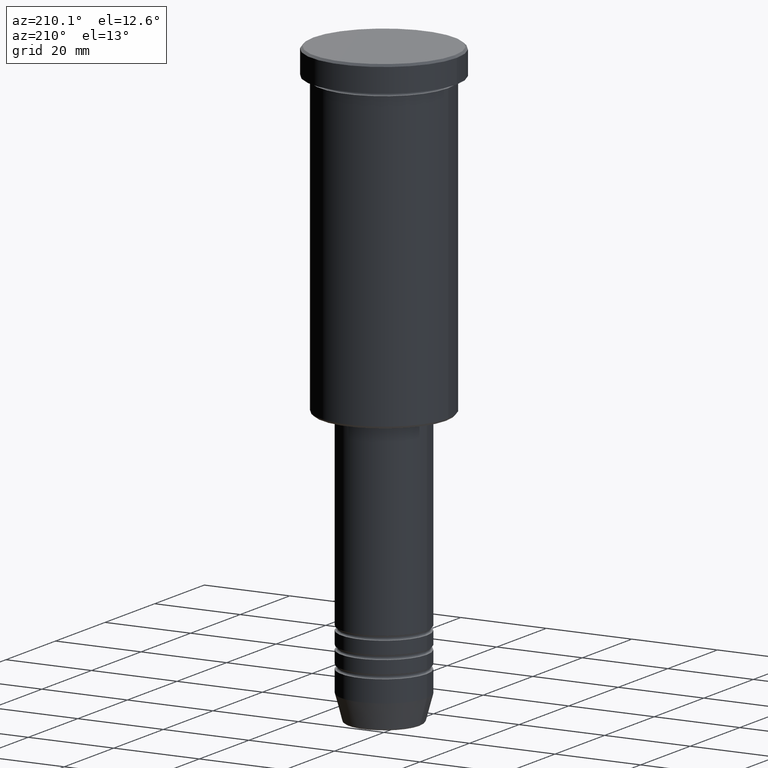
[diagram: clean part render]
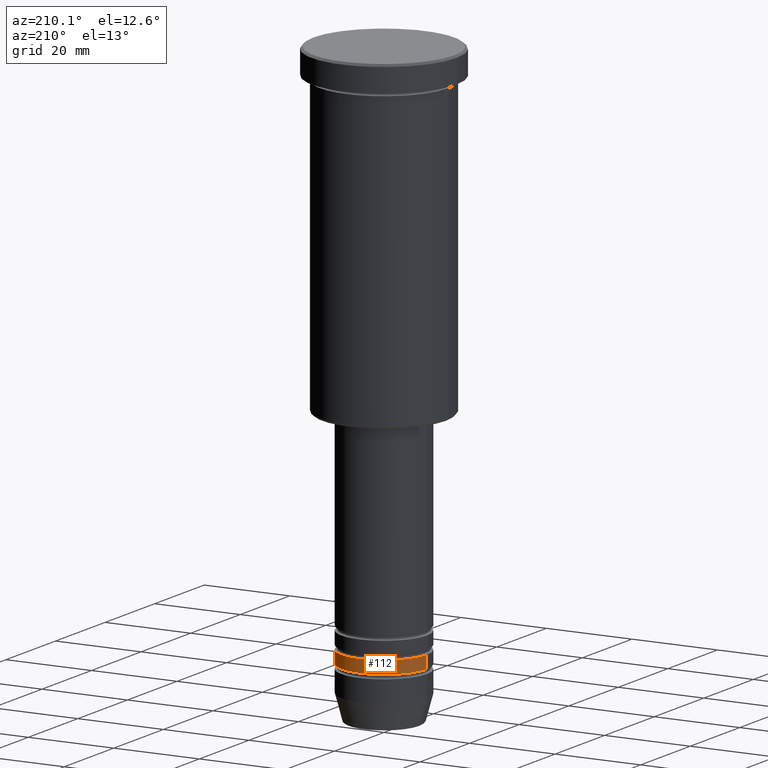
[diagram: same view with one face highlighted and labeled with its STEP entity id]
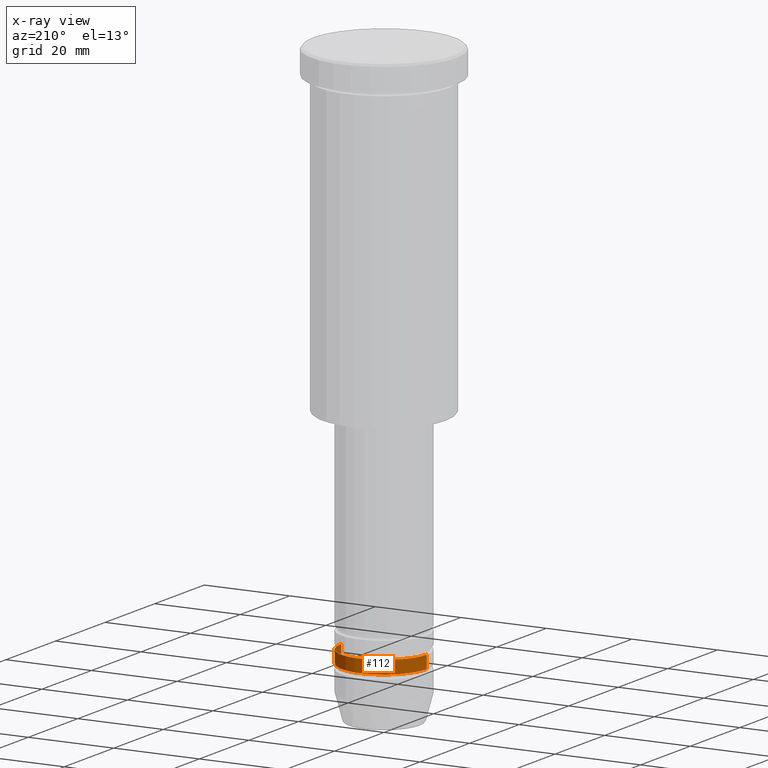
[diagram: x-ray of the same camera — body ghosted, the highlighted face saturated]
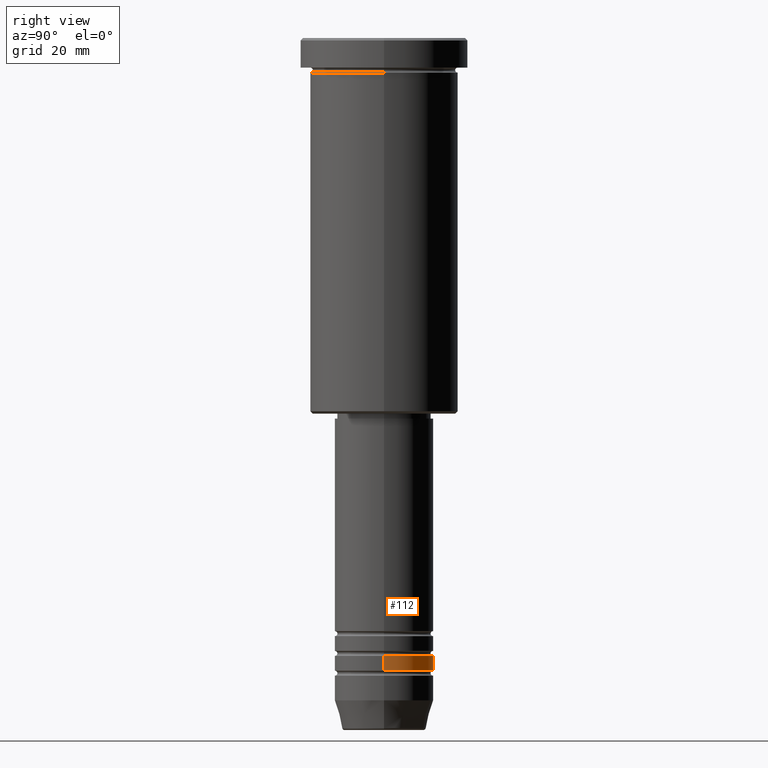
[diagram: same view with one face highlighted and labeled with its STEP entity id]
A machine part, auxiliary view. The second image highlights one B-rep face of the part: STEP entity #112.
The next image is the same camera in x-ray: the body ghosted, the highlighted face saturated — about 0% of this face is hidden behind the body in this view.
A second angle (right view) of the same face is appended — the face is thin or edge-on in the first view.
In plain terms, the highlighted cylindrical surface (partial cylindrical patch) has radius 10 mm, axis along (-0, -0, 1).
Its self-contained STEP definition (entity closure, byte-faithful):
#41 = DIRECTION ( 'NONE',  ( 1.000000000000000000, 0.000000000000000000, 0.000000000000000000 ) ) ;
#54 = VECTOR ( 'NONE', #259, 1000.000000000000000 ) ;
#57 = CIRCLE ( 'NONE', #212, 10.00000000000000000 ) ;
#105 = CARTESIAN_POINT ( 'NONE',  ( 0.000000000000000000, 0.000000000000000000, 0.000000000000000000 ) ) ;
#112 = ADVANCED_FACE ( 'NONE', ( #565 ), #926, .T. ) ;
#118 = CARTESIAN_POINT ( 'NONE',  ( 0.000000000000000000, 0.000000000000000000, -128.0000000000000000 ) ) ;
#149 = EDGE_CURVE ( 'NONE', #475, #525, #646, .T. ) ;
#190 = CARTESIAN_POINT ( 'NONE',  ( -10.00000000000000000, 1.224646799147353256E-15, -125.0000000000000000 ) ) ;
#209 = AXIS2_PLACEMENT_3D ( 'NONE', #118, #472, #769 ) ;
#212 = AXIS2_PLACEMENT_3D ( 'NONE', #361, #251, #41 ) ;
#251 = DIRECTION ( 'NONE',  ( -0.000000000000000000, -0.000000000000000000, 1.000000000000000000 ) ) ;
#256 = CARTESIAN_POINT ( 'NONE',  ( -10.00000000000000178, 1.224646799147353454E-15, -128.0000000000000000 ) ) ;
#259 = DIRECTION ( 'NONE',  ( -0.000000000000000000, -0.000000000000000000, 1.000000000000000000 ) ) ;
#294 = DIRECTION ( 'NONE',  ( -0.000000000000000000, -0.000000000000000000, 1.000000000000000000 ) ) ;
#333 = EDGE_CURVE ( 'NONE', #525, #485, #765, .T. ) ;
#335 = ORIENTED_EDGE ( 'NONE', *, *, #580, .F. ) ;
#361 = CARTESIAN_POINT ( 'NONE',  ( 0.000000000000000000, 0.000000000000000000, -125.0000000000000000 ) ) ;
#472 = DIRECTION ( 'NONE',  ( -0.000000000000000000, -0.000000000000000000, 1.000000000000000000 ) ) ;
#475 = VERTEX_POINT ( 'NONE', #943 ) ;
#485 = VERTEX_POINT ( 'NONE', #190 ) ;
#498 = CARTESIAN_POINT ( 'NONE',  ( 10.00000000000000000, 0.000000000000000000, -125.0000000000000000 ) ) ;
#525 = VERTEX_POINT ( 'NONE', #256 ) ;
#532 = LINE ( 'NONE', #900, #951 ) ;
#565 = FACE_OUTER_BOUND ( 'NONE', #889, .T. ) ;
#580 = EDGE_CURVE ( 'NONE', #475, #950, #532, .T. ) ;
#609 = DIRECTION ( 'NONE',  ( -0.000000000000000000, -0.000000000000000000, 1.000000000000000000 ) ) ;
#633 = EDGE_CURVE ( 'NONE', #950, #485, #57, .T. ) ;
#646 = CIRCLE ( 'NONE', #209, 10.00000000000000178 ) ;
#673 = DIRECTION ( 'NONE',  ( 1.000000000000000000, 0.000000000000000000, 0.000000000000000000 ) ) ;
#765 = LINE ( 'NONE', #892, #54 ) ;
#769 = DIRECTION ( 'NONE',  ( 1.000000000000000000, 0.000000000000000000, 0.000000000000000000 ) ) ;
#772 = ORIENTED_EDGE ( 'NONE', *, *, #149, .T. ) ;
#824 = ORIENTED_EDGE ( 'NONE', *, *, #633, .F. ) ;
#828 = ORIENTED_EDGE ( 'NONE', *, *, #333, .T. ) ;
#889 = EDGE_LOOP ( 'NONE', ( #772, #828, #824, #335 ) ) ;
#892 = CARTESIAN_POINT ( 'NONE',  ( -10.00000000000000178, 1.224646799147353454E-15, 0.000000000000000000 ) ) ;
#900 = CARTESIAN_POINT ( 'NONE',  ( 10.00000000000000178, 0.000000000000000000, 0.000000000000000000 ) ) ;
#926 = CYLINDRICAL_SURFACE ( 'NONE', #970, 10.00000000000000178 ) ;
#943 = CARTESIAN_POINT ( 'NONE',  ( 10.00000000000000178, 0.000000000000000000, -128.0000000000000000 ) ) ;
#950 = VERTEX_POINT ( 'NONE', #498 ) ;
#951 = VECTOR ( 'NONE', #609, 1000.000000000000000 ) ;
#970 = AXIS2_PLACEMENT_3D ( 'NONE', #105, #294, #673 ) ;